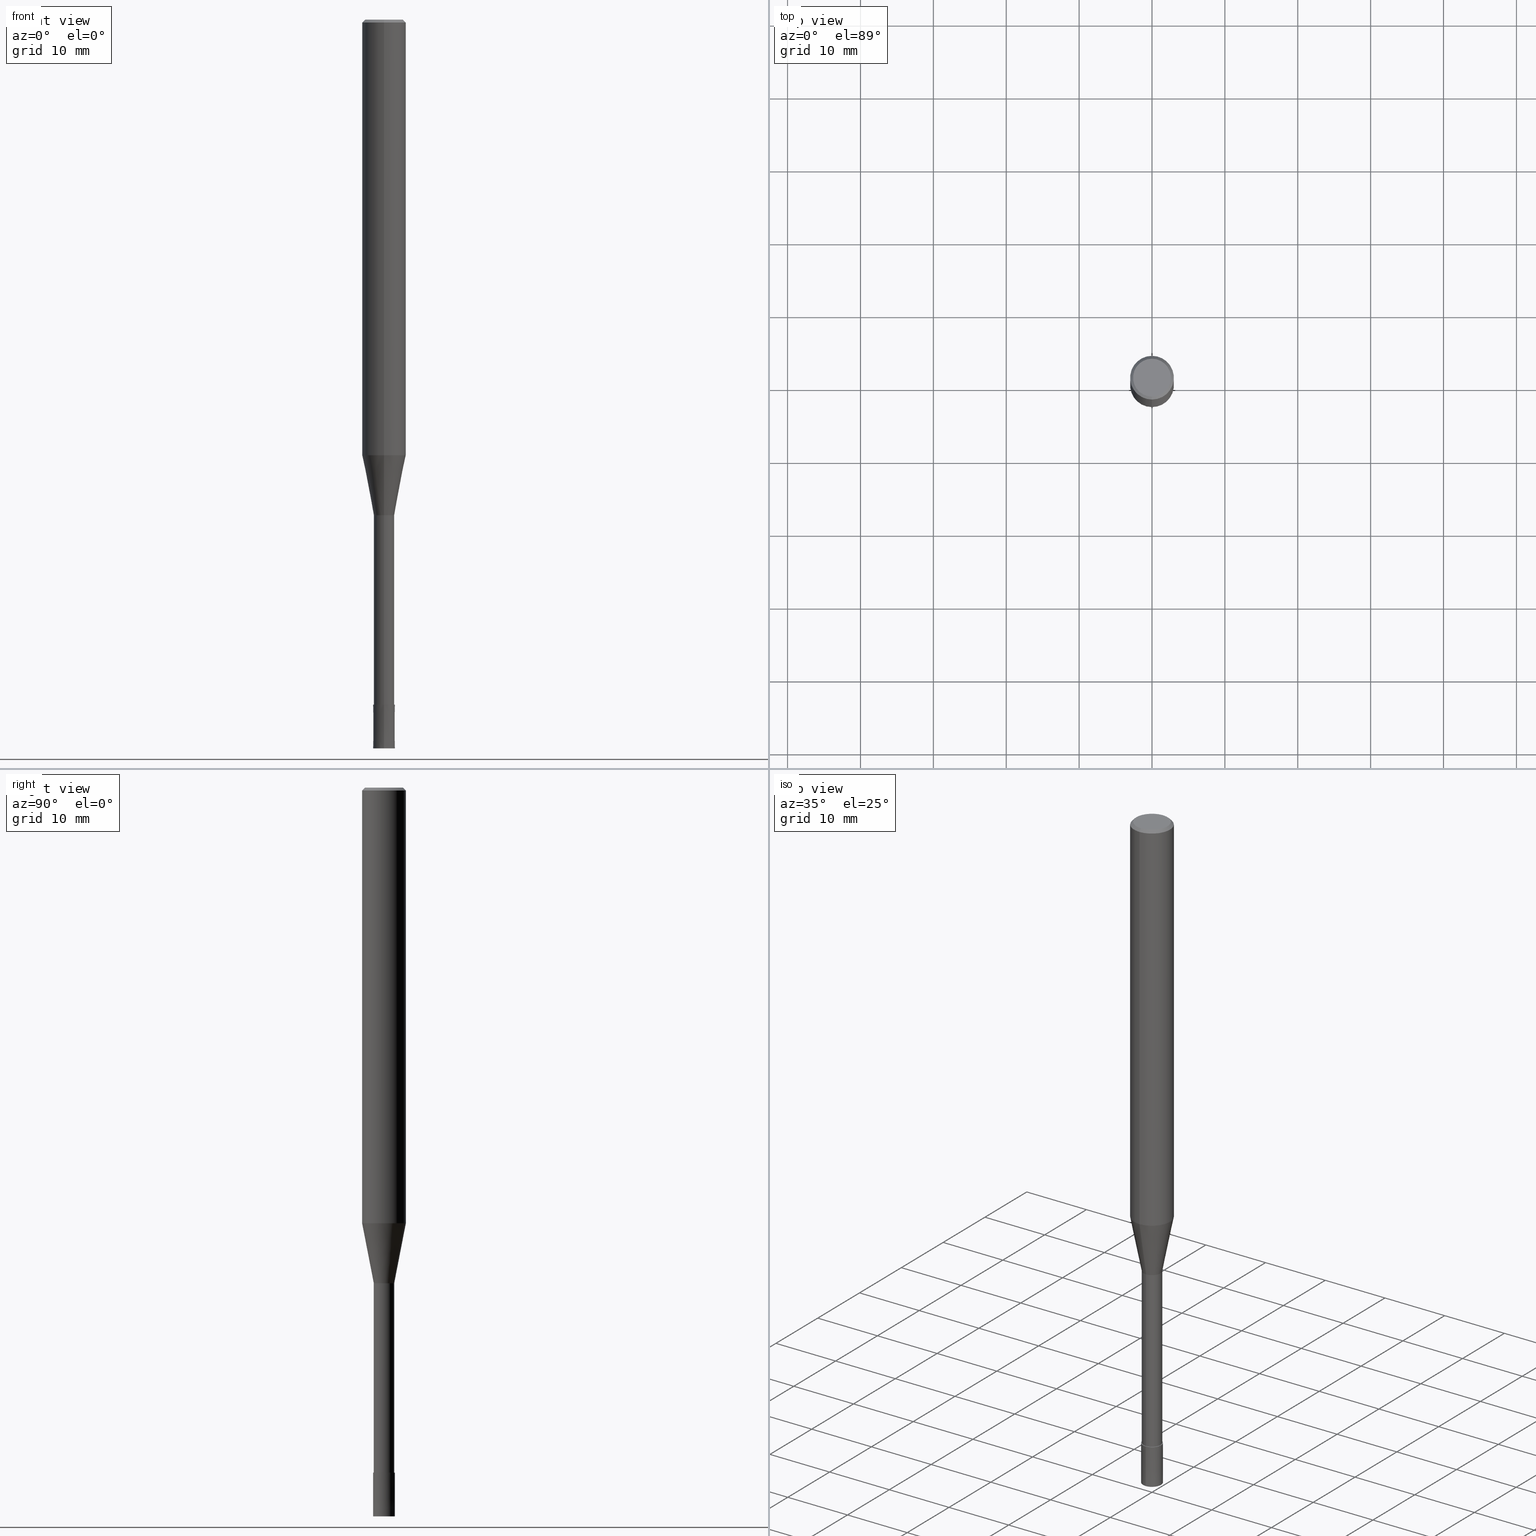
[diagram: canonical four-view strip — front | top / right | iso, engineering-drawing reading convention]
A machine part, canonical four-view strip (front | top / right | iso — engineering-drawing reading convention). The complete STEP part file that produces these views, byte-faithful:
ISO-10303-21;
HEADER;
FILE_DESCRIPTION(('no description'),'unknown implementation level');
FILE_NAME('CPRL2030-32-Huellk.stp','  ',('CIMSOURCE GmbH'),('CADClick - KiM GmbH - www.kimweb.de'),'unknown preprocess','ACIS','unknown authorization');
FILE_SCHEMA(('automotive_design'));
ENDSEC;
DATA;
#1=MECHANICAL_DESIGN_GEOMETRIC_PRESENTATION_REPRESENTATION(' ',(#14,#15,#16,#17,#18,#19,#20,#21,#22,#23,#24,#25,#26,#27,#28,#29,#30,#31,#32,#33,#34,#35,#36,#37,#38,#39,#40,#41,#42,#43,#44,#45,#46,#47,#48,#49,#50,#51,#52,#53,#54,#55,#56,#57,#58,#59,#60,#61,#62,#63,#64,#65,#66,#67,#68,#69,#70,#71,#72),#10);
#2=PRODUCT_DEFINITION_CONTEXT('',#73,'design');
#3=APPLICATION_PROTOCOL_DEFINITION('INTERNATIONAL STANDARD','automotive_design',1994,#73);
#4=PRODUCT_CATEGORY_RELATIONSHIP('NONE','NONE',#74,#75);
#5=SHAPE_DEFINITION_REPRESENTATION(#76,#77);
#6=PRODUCT_DEFINITION_CONTEXT('',#78,'design');
#7=APPLICATION_PROTOCOL_DEFINITION('INTERNATIONAL STANDARD','automotive_design',1994,#78);
#8=PRODUCT_CATEGORY_RELATIONSHIP('NONE','NONE',#79,#80);
#9=SHAPE_DEFINITION_REPRESENTATION(#81,#82);
#10= (GEOMETRIC_REPRESENTATION_CONTEXT(3)GLOBAL_UNCERTAINTY_ASSIGNED_CONTEXT((#85))GLOBAL_UNIT_ASSIGNED_CONTEXT((#87,#88,#89))REPRESENTATION_CONTEXT('NONE','WORKSPACE'));
#14=STYLED_ITEM('',(#91),#92);
#15=STYLED_ITEM('',(#93),#94);
#16=STYLED_ITEM('',(#95),#96);
#17=STYLED_ITEM('',(#97),#98);
#18=STYLED_ITEM('',(#99),#100);
#19=STYLED_ITEM('',(#101),#102);
#20=STYLED_ITEM('',(#103),#104);
#21=STYLED_ITEM('',(#105),#106);
#22=STYLED_ITEM('',(#107),#108);
#23=STYLED_ITEM('',(#109),#110);
#24=STYLED_ITEM('',(#111),#112);
#25=STYLED_ITEM('',(#113),#114);
#26=STYLED_ITEM('',(#115),#116);
#27=STYLED_ITEM('',(#117),#118);
#28=STYLED_ITEM('',(#119),#120);
#29=STYLED_ITEM('',(#121),#122);
#30=STYLED_ITEM('',(#123),#124);
#31=STYLED_ITEM('',(#125),#126);
#32=STYLED_ITEM('',(#127),#128);
#33=STYLED_ITEM('',(#129),#130);
#34=STYLED_ITEM('',(#131),#132);
#35=STYLED_ITEM('',(#133),#134);
#36=STYLED_ITEM('',(#135),#136);
#37=STYLED_ITEM('',(#137),#138);
#38=STYLED_ITEM('',(#139),#140);
#39=STYLED_ITEM('',(#141),#142);
#40=STYLED_ITEM('',(#143),#144);
#41=STYLED_ITEM('',(#145),#146);
#42=STYLED_ITEM('',(#147),#148);
#43=STYLED_ITEM('',(#149),#150);
#44=STYLED_ITEM('',(#151),#152);
#45=STYLED_ITEM('',(#153),#154);
#46=STYLED_ITEM('',(#155),#156);
#47=STYLED_ITEM('',(#157),#158);
#48=STYLED_ITEM('',(#159),#160);
#49=STYLED_ITEM('',(#161),#162);
#50=STYLED_ITEM('',(#163),#164);
#51=STYLED_ITEM('',(#165),#166);
#52=STYLED_ITEM('',(#167),#168);
#53=STYLED_ITEM('',(#169),#170);
#54=STYLED_ITEM('',(#171),#172);
#55=STYLED_ITEM('',(#173),#174);
#56=STYLED_ITEM('',(#175),#176);
#57=STYLED_ITEM('',(#177),#178);
#58=STYLED_ITEM('',(#179),#180);
#59=STYLED_ITEM('',(#181),#182);
#60=STYLED_ITEM('',(#183),#184);
#61=STYLED_ITEM('',(#185),#186);
#62=STYLED_ITEM('',(#187),#188);
#63=STYLED_ITEM('',(#189),#190);
#64=STYLED_ITEM('',(#191),#192);
#65=STYLED_ITEM('',(#193),#194);
#66=STYLED_ITEM('',(#195),#196);
#67=STYLED_ITEM('',(#197),#198);
#68=STYLED_ITEM('',(#199),#200);
#69=STYLED_ITEM('',(#201),#202);
#70=STYLED_ITEM('',(#203),#204);
#71=STYLED_ITEM('',(#205),#206);
#72=STYLED_ITEM('',(#207),#208);
#73=APPLICATION_CONTEXT(' ');
#74=PRODUCT_CATEGORY('part','NONE');
#75=PRODUCT_RELATED_PRODUCT_CATEGORY('detail',' ',(#209));
#76=PRODUCT_DEFINITION_SHAPE('NONE','NONE',#210);
#77=ADVANCED_BREP_SHAPE_REPRESENTATION('1',(#96,#211),#10);
#78=APPLICATION_CONTEXT(' ');
#79=PRODUCT_CATEGORY('part','NONE');
#80=PRODUCT_RELATED_PRODUCT_CATEGORY('detail',' ',(#212));
#81=PRODUCT_DEFINITION_SHAPE('NONE','NONE',#213);
#82=ADVANCED_BREP_SHAPE_REPRESENTATION('2',(#190,#214),#10);
#85=UNCERTAINTY_MEASURE_WITH_UNIT(LENGTH_MEASURE(1.0E-006),#87,'','');
#87= (CONVERSION_BASED_UNIT('MILLIMETRE',#217)LENGTH_UNIT()NAMED_UNIT(#220));
#88= (NAMED_UNIT(#222)PLANE_ANGLE_UNIT()SI_UNIT($,.RADIAN.));
#89= (NAMED_UNIT(#222)SOLID_ANGLE_UNIT()SI_UNIT($,.STERADIAN.));
#91=PRESENTATION_STYLE_ASSIGNMENT((#228));
#92=EDGE_CURVE('',#156,#160,#229,.T.);
#93=PRESENTATION_STYLE_ASSIGNMENT((#230));
#94=VERTEX_POINT('',#231);
#95=PRESENTATION_STYLE_ASSIGNMENT((#232));
#96=MANIFOLD_SOLID_BREP('1',#233);
#97=PRESENTATION_STYLE_ASSIGNMENT((#234));
#98=ADVANCED_FACE('',(#235),#236,.T.);
#99=PRESENTATION_STYLE_ASSIGNMENT((#237));
#100=EDGE_CURVE('',#116,#156,#238,.T.);
#101=PRESENTATION_STYLE_ASSIGNMENT((#239));
#102=VERTEX_POINT('',#240);
#103=PRESENTATION_STYLE_ASSIGNMENT((#241));
#104=VERTEX_POINT('',#242);
#105=PRESENTATION_STYLE_ASSIGNMENT((#243));
#106=ADVANCED_FACE('',(#244,#245),#246,.T.);
#107=PRESENTATION_STYLE_ASSIGNMENT((#247));
#108=EDGE_CURVE('',#184,#116,#248,.T.);
#109=PRESENTATION_STYLE_ASSIGNMENT((#249));
#110=EDGE_CURVE('',#104,#178,#250,.T.);
#111=PRESENTATION_STYLE_ASSIGNMENT((#251));
#112=ADVANCED_FACE('',(#252),#253,.T.);
#113=PRESENTATION_STYLE_ASSIGNMENT((#254));
#114=EDGE_CURVE('',#208,#130,#255,.T.);
#115=PRESENTATION_STYLE_ASSIGNMENT((#256));
#116=VERTEX_POINT('',#257);
#117=PRESENTATION_STYLE_ASSIGNMENT((#258));
#118=EDGE_CURVE('',#122,#156,#259,.T.);
#119=PRESENTATION_STYLE_ASSIGNMENT((#260));
#120=ADVANCED_FACE('',(#261),#262,.T.);
#121=PRESENTATION_STYLE_ASSIGNMENT((#263));
#122=VERTEX_POINT('',#264);
#123=PRESENTATION_STYLE_ASSIGNMENT((#265));
#124=EDGE_CURVE('',#130,#208,#266,.T.);
#125=PRESENTATION_STYLE_ASSIGNMENT((#267));
#126=VERTEX_POINT('',#268);
#127=PRESENTATION_STYLE_ASSIGNMENT((#269));
#128=EDGE_CURVE('',#104,#94,#270,.T.);
#129=PRESENTATION_STYLE_ASSIGNMENT((#271));
#130=VERTEX_POINT('',#272);
#131=PRESENTATION_STYLE_ASSIGNMENT((#273));
#132=EDGE_CURVE('',#170,#186,#274,.T.);
#133=PRESENTATION_STYLE_ASSIGNMENT((#275));
#134=EDGE_CURVE('',#102,#208,#276,.T.);
#135=PRESENTATION_STYLE_ASSIGNMENT((#277));
#136=EDGE_CURVE('',#206,#122,#278,.T.);
#137=PRESENTATION_STYLE_ASSIGNMENT((#279));
#138=EDGE_CURVE('',#102,#200,#280,.T.);
#139=PRESENTATION_STYLE_ASSIGNMENT((#281));
#140=EDGE_CURVE('',#122,#184,#282,.T.);
#141=PRESENTATION_STYLE_ASSIGNMENT((#283));
#142=EDGE_CURVE('',#94,#126,#284,.T.);
#143=PRESENTATION_STYLE_ASSIGNMENT((#285));
#144=ADVANCED_FACE('',(#286),#287,.T.);
#145=PRESENTATION_STYLE_ASSIGNMENT((#288));
#146=EDGE_CURVE('',#186,#130,#289,.T.);
#147=PRESENTATION_STYLE_ASSIGNMENT((#290));
#148=EDGE_CURVE('',#208,#170,#291,.T.);
#149=PRESENTATION_STYLE_ASSIGNMENT((#292));
#150=EDGE_CURVE('',#160,#206,#293,.T.);
#151=PRESENTATION_STYLE_ASSIGNMENT((#294));
#152=ADVANCED_FACE('',(#295),#296,.T.);
#153=PRESENTATION_STYLE_ASSIGNMENT((#297));
#154=ADVANCED_FACE('',(#298),#299,.T.);
#155=PRESENTATION_STYLE_ASSIGNMENT((#300));
#156=VERTEX_POINT('',#301);
#157=PRESENTATION_STYLE_ASSIGNMENT((#302));
#158=EDGE_CURVE('',#200,#102,#303,.T.);
#159=PRESENTATION_STYLE_ASSIGNMENT((#304));
#160=VERTEX_POINT('',#305);
#161=PRESENTATION_STYLE_ASSIGNMENT((#306));
#162=EDGE_CURVE('',#206,#160,#307,.T.);
#163=PRESENTATION_STYLE_ASSIGNMENT((#308));
#164=EDGE_CURVE('',#126,#94,#309,.T.);
#165=PRESENTATION_STYLE_ASSIGNMENT((#310));
#166=EDGE_CURVE('',#126,#178,#311,.T.);
#167=PRESENTATION_STYLE_ASSIGNMENT((#312));
#168=ADVANCED_FACE('',(#313),#314,.T.);
#169=PRESENTATION_STYLE_ASSIGNMENT((#315));
#170=VERTEX_POINT('',#316);
#171=PRESENTATION_STYLE_ASSIGNMENT((#317));
#172=ADVANCED_FACE('',(#318),#319,.T.);
#173=PRESENTATION_STYLE_ASSIGNMENT((#320));
#174=EDGE_CURVE('',#156,#122,#321,.T.);
#175=PRESENTATION_STYLE_ASSIGNMENT((#322));
#176=ADVANCED_FACE('',(#323),#324,.T.);
#177=PRESENTATION_STYLE_ASSIGNMENT((#325));
#178=VERTEX_POINT('',#326);
#179=PRESENTATION_STYLE_ASSIGNMENT((#327));
#180=EDGE_CURVE('',#178,#104,#328,.T.);
#181=PRESENTATION_STYLE_ASSIGNMENT((#329));
#182=ADVANCED_FACE('',(#330),#331,.T.);
#183=PRESENTATION_STYLE_ASSIGNMENT((#332));
#184=VERTEX_POINT('',#333);
#185=PRESENTATION_STYLE_ASSIGNMENT((#334));
#186=VERTEX_POINT('',#335);
#187=PRESENTATION_STYLE_ASSIGNMENT((#336));
#188=EDGE_CURVE('',#186,#170,#337,.T.);
#189=PRESENTATION_STYLE_ASSIGNMENT((#338));
#190=MANIFOLD_SOLID_BREP('2',#339);
#191=PRESENTATION_STYLE_ASSIGNMENT((#340));
#192=EDGE_CURVE('',#130,#200,#341,.T.);
#193=PRESENTATION_STYLE_ASSIGNMENT((#342));
#194=ADVANCED_FACE('',(#343),#344,.T.);
#195=PRESENTATION_STYLE_ASSIGNMENT((#345));
#196=ADVANCED_FACE('',(#346),#347,.T.);
#197=PRESENTATION_STYLE_ASSIGNMENT((#348));
#198=ADVANCED_FACE('',(#349),#350,.T.);
#199=PRESENTATION_STYLE_ASSIGNMENT((#351));
#200=VERTEX_POINT('',#352);
#201=PRESENTATION_STYLE_ASSIGNMENT((#353));
#202=EDGE_CURVE('',#116,#184,#354,.T.);
#203=PRESENTATION_STYLE_ASSIGNMENT((#355));
#204=ADVANCED_FACE('',(#356),#357,.T.);
#205=PRESENTATION_STYLE_ASSIGNMENT((#358));
#206=VERTEX_POINT('',#359);
#207=PRESENTATION_STYLE_ASSIGNMENT((#360));
#208=VERTEX_POINT('',#361);
#209=PRODUCT('1','1','PART-1-DESC',(#362));
#210=PRODUCT_DEFINITION('NONE','NONE',#363,#2);
#211=AXIS2_PLACEMENT_3D('',#364,#365,#366);
#212=PRODUCT('2','2','PART-2-DESC',(#367));
#213=PRODUCT_DEFINITION('NONE','NONE',#368,#6);
#214=AXIS2_PLACEMENT_3D('',#369,#370,#371);
#217=LENGTH_MEASURE_WITH_UNIT(LENGTH_MEASURE(1.0),#372);
#220=DIMENSIONAL_EXPONENTS(1.0,0.0,0.0,0.0,0.0,0.0,0.0);
#222=DIMENSIONAL_EXPONENTS(0.0,0.0,0.0,0.0,0.0,0.0,0.0);
#228=CURVE_STYLE('',#373,POSITIVE_LENGTH_MEASURE(1.0E-006),#374);
#229=LINE('',#375,#376);
#230=POINT_STYLE(' ',#377,POSITIVE_LENGTH_MEASURE(1.0E-006),#378);
#231=CARTESIAN_POINT('',(0.0,1.5,-100.0));
#232=SURFACE_STYLE_USAGE(.BOTH.,#379);
#233=CLOSED_SHELL('',(#176,#196,#168,#204,#106,#198,#98,#172,#182,#144,#120));
#234=SURFACE_STYLE_USAGE(.BOTH.,#380);
#235=FACE_OUTER_BOUND('',#381,.T.);
#236=CONICAL_SURFACE('',#382,2.8,0.78539816339745);
#237=CURVE_STYLE('',#383,POSITIVE_LENGTH_MEASURE(1.0E-006),#384);
#238=LINE('',#385,#386);
#239=POINT_STYLE(' ',#387,POSITIVE_LENGTH_MEASURE(1.0E-006),#388);
#240=CARTESIAN_POINT('',(0.0,2.6,0.0));
#241=POINT_STYLE(' ',#389,POSITIVE_LENGTH_MEASURE(1.0E-006),#390);
#242=CARTESIAN_POINT('',(0.0,1.4999,-94.0));
#243=SURFACE_STYLE_USAGE(.BOTH.,#391);
#244=FACE_OUTER_BOUND('',#392,.T.);
#245=FACE_BOUND('',#393,.T.);
#246=PLANE('',#394);
#247=CURVE_STYLE('',#395,POSITIVE_LENGTH_MEASURE(1.0E-006),#396);
#248=CIRCLE('',#397,1.39995);
#249=CURVE_STYLE('',#398,POSITIVE_LENGTH_MEASURE(1.0E-006),#399);
#250=CIRCLE('',#400,1.4999);
#251=SURFACE_STYLE_USAGE(.BOTH.,#401);
#252=FACE_OUTER_BOUND('',#402,.T.);
#253=PLANE('',#403);
#254=CURVE_STYLE('',#404,POSITIVE_LENGTH_MEASURE(1.0E-006),#405);
#255=CIRCLE('',#406,3.0);
#256=POINT_STYLE(' ',#407,POSITIVE_LENGTH_MEASURE(1.0E-006),#408);
#257=CARTESIAN_POINT('',(1.71438766503364E-016,-1.39995,-94.0));
#258=CURVE_STYLE('',#409,POSITIVE_LENGTH_MEASURE(1.0E-006),#410);
#259=CIRCLE('',#411,1.39995);
#260=SURFACE_STYLE_USAGE(.BOTH.,#412);
#261=FACE_OUTER_BOUND('',#413,.T.);
#262=PLANE('',#414);
#263=POINT_STYLE(' ',#415,POSITIVE_LENGTH_MEASURE(1.0E-006),#416);
#264=CARTESIAN_POINT('',(0.0,1.39995,-68.0));
#265=CURVE_STYLE('',#417,POSITIVE_LENGTH_MEASURE(1.0E-006),#418);
#266=CIRCLE('',#419,3.0);
#267=POINT_STYLE(' ',#420,POSITIVE_LENGTH_MEASURE(1.0E-006),#421);
#268=CARTESIAN_POINT('',(1.83690953073357E-016,-1.5,-100.0));
#269=CURVE_STYLE('',#422,POSITIVE_LENGTH_MEASURE(1.0E-006),#423);
#270=LINE('',#424,#425);
#271=POINT_STYLE(' ',#426,POSITIVE_LENGTH_MEASURE(1.0E-006),#427);
#272=CARTESIAN_POINT('',(3.67381906146713E-016,-3.0,-0.399999999999999));
#273=CURVE_STYLE('',#428,POSITIVE_LENGTH_MEASURE(1.0E-006),#429);
#274=CIRCLE('',#430,3.0);
#275=CURVE_STYLE('',#431,POSITIVE_LENGTH_MEASURE(1.0E-006),#432);
#276=LINE('',#433,#434);
#277=CURVE_STYLE('',#435,POSITIVE_LENGTH_MEASURE(1.0E-006),#436);
#278=LINE('',#437,#438);
#279=CURVE_STYLE('',#439,POSITIVE_LENGTH_MEASURE(1.0E-006),#440);
#280=CIRCLE('',#441,2.6);
#281=CURVE_STYLE('',#442,POSITIVE_LENGTH_MEASURE(1.0E-006),#443);
#282=LINE('',#444,#445);
#283=CURVE_STYLE('',#446,POSITIVE_LENGTH_MEASURE(1.0E-006),#447);
#284=CIRCLE('',#448,1.5);
#285=SURFACE_STYLE_USAGE(.BOTH.,#449);
#286=FACE_OUTER_BOUND('',#450,.T.);
#287=CYLINDRICAL_SURFACE('',#451,1.39995);
#288=CURVE_STYLE('',#452,POSITIVE_LENGTH_MEASURE(1.0E-006),#453);
#289=LINE('',#454,#455);
#290=CURVE_STYLE('',#456,POSITIVE_LENGTH_MEASURE(1.0E-006),#457);
#291=LINE('',#458,#459);
#292=CURVE_STYLE('',#460,POSITIVE_LENGTH_MEASURE(1.0E-006),#461);
#293=CIRCLE('',#462,2.99995);
#294=SURFACE_STYLE_USAGE(.BOTH.,#463);
#295=FACE_OUTER_BOUND('',#464,.T.);
#296=CONICAL_SURFACE('',#465,1.49995,1.66666666651216E-005);
#297=SURFACE_STYLE_USAGE(.BOTH.,#466);
#298=FACE_OUTER_BOUND('',#467,.T.);
#299=PLANE('',#468);
#300=POINT_STYLE(' ',#469,POSITIVE_LENGTH_MEASURE(1.0E-006),#470);
#301=CARTESIAN_POINT('',(1.71438766503364E-016,-1.39995,-68.0));
#302=CURVE_STYLE('',#471,POSITIVE_LENGTH_MEASURE(1.0E-006),#472);
#303=CIRCLE('',#473,2.6);
#304=POINT_STYLE(' ',#474,POSITIVE_LENGTH_MEASURE(1.0E-006),#475);
#305=CARTESIAN_POINT('',(3.67375783114944E-016,-2.99995,-59.769));
#306=CURVE_STYLE('',#476,POSITIVE_LENGTH_MEASURE(1.0E-006),#477);
#307=CIRCLE('',#478,2.99995);
#308=CURVE_STYLE('',#479,POSITIVE_LENGTH_MEASURE(1.0E-006),#480);
#309=CIRCLE('',#481,1.5);
#310=CURVE_STYLE('',#482,POSITIVE_LENGTH_MEASURE(1.0E-006),#483);
#311=LINE('',#484,#485);
#312=SURFACE_STYLE_USAGE(.BOTH.,#486);
#313=FACE_OUTER_BOUND('',#487,.T.);
#314=CYLINDRICAL_SURFACE('',#488,3.0);
#315=POINT_STYLE(' ',#489,POSITIVE_LENGTH_MEASURE(1.0E-006),#490);
#316=CARTESIAN_POINT('',(0.0,3.0,-59.769));
#317=SURFACE_STYLE_USAGE(.BOTH.,#491);
#318=FACE_OUTER_BOUND('',#492,.T.);
#319=CYLINDRICAL_SURFACE('',#493,3.0);
#320=CURVE_STYLE('',#494,POSITIVE_LENGTH_MEASURE(1.0E-006),#495);
#321=CIRCLE('',#496,1.39995);
#322=SURFACE_STYLE_USAGE(.BOTH.,#497);
#323=FACE_OUTER_BOUND('',#498,.T.);
#324=CYLINDRICAL_SURFACE('',#499,1.39995);
#325=POINT_STYLE(' ',#500,POSITIVE_LENGTH_MEASURE(1.0E-006),#501);
#326=CARTESIAN_POINT('',(1.83678707009818E-016,-1.4999,-94.0));
#327=CURVE_STYLE('',#502,POSITIVE_LENGTH_MEASURE(1.0E-006),#503);
#328=CIRCLE('',#504,1.4999);
#329=SURFACE_STYLE_USAGE(.BOTH.,#505);
#330=FACE_OUTER_BOUND('',#506,.T.);
#331=CONICAL_SURFACE('',#507,2.19995,0.191992735564386);
#332=POINT_STYLE(' ',#508,POSITIVE_LENGTH_MEASURE(1.0E-006),#509);
#333=CARTESIAN_POINT('',(0.0,1.39995,-94.0));
#334=POINT_STYLE(' ',#510,POSITIVE_LENGTH_MEASURE(1.0E-006),#511);
#335=CARTESIAN_POINT('',(3.67381906146713E-016,-3.0,-59.769));
#336=CURVE_STYLE('',#512,POSITIVE_LENGTH_MEASURE(1.0E-006),#513);
#337=CIRCLE('',#514,3.0);
#338=SURFACE_STYLE_USAGE(.BOTH.,#515);
#339=CLOSED_SHELL('',(#152,#112,#194,#154));
#340=CURVE_STYLE('',#516,POSITIVE_LENGTH_MEASURE(1.0E-006),#517);
#341=LINE('',#518,#519);
#342=SURFACE_STYLE_USAGE(.BOTH.,#520);
#343=FACE_OUTER_BOUND('',#521,.T.);
#344=CONICAL_SURFACE('',#522,1.49995,1.66666666651216E-005);
#345=SURFACE_STYLE_USAGE(.BOTH.,#523);
#346=FACE_OUTER_BOUND('',#524,.T.);
#347=CONICAL_SURFACE('',#525,2.19995,0.191992735564386);
#348=SURFACE_STYLE_USAGE(.BOTH.,#526);
#349=FACE_OUTER_BOUND('',#527,.T.);
#350=PLANE('',#528);
#351=POINT_STYLE(' ',#529,POSITIVE_LENGTH_MEASURE(1.0E-006),#530);
#352=CARTESIAN_POINT('',(3.18397651993818E-016,-2.6,0.0));
#353=CURVE_STYLE('',#531,POSITIVE_LENGTH_MEASURE(1.0E-006),#532);
#354=CIRCLE('',#533,1.39995);
#355=SURFACE_STYLE_USAGE(.BOTH.,#534);
#356=FACE_OUTER_BOUND('',#535,.T.);
#357=CONICAL_SURFACE('',#536,2.8,0.78539816339745);
#358=POINT_STYLE(' ',#537,POSITIVE_LENGTH_MEASURE(1.0E-006),#538);
#359=CARTESIAN_POINT('',(0.0,2.99995,-59.769));
#360=POINT_STYLE(' ',#539,POSITIVE_LENGTH_MEASURE(1.0E-006),#540);
#361=CARTESIAN_POINT('',(0.0,3.0,-0.399999999999999));
#362=PRODUCT_CONTEXT('',#73,'mechanical');
#363=PRODUCT_DEFINITION_FORMATION_WITH_SPECIFIED_SOURCE(' ','NONE',#209,.NOT_KNOWN.);
#364=CARTESIAN_POINT('',(0.0,0.0,0.0));
#365=DIRECTION('',(0.0,0.0,1.0));
#366=DIRECTION('',(1.0,0.0,0.0));
#367=PRODUCT_CONTEXT('',#78,'mechanical');
#368=PRODUCT_DEFINITION_FORMATION_WITH_SPECIFIED_SOURCE(' ','NONE',#212,.NOT_KNOWN.);
#369=CARTESIAN_POINT('',(0.0,0.0,0.0));
#370=DIRECTION('',(0.0,0.0,1.0));
#371=DIRECTION('',(1.0,0.0,0.0));
#372= (NAMED_UNIT(#220)LENGTH_UNIT()SI_UNIT(.MILLI.,.METRE.));
#373=DRAUGHTING_PRE_DEFINED_CURVE_FONT('continuous');
#374=COLOUR_RGB('',0.498039215803146,0.498039215803146,0.498039215803146);
#375=CARTESIAN_POINT('',(2.69407274809154E-016,-2.19995,-63.8845));
#376=VECTOR('',#542,1.0);
#377=PRE_DEFINED_MARKER('');
#378=COLOUR_RGB('',0.800000011920929,0.800000011920929,0.800000011920929);
#379=SURFACE_SIDE_STYLE('',(#543));
#380=SURFACE_SIDE_STYLE('',(#544));
#381=EDGE_LOOP('',(#545,#546,#547,#548));
#382=AXIS2_PLACEMENT_3D('',#549,#550,#551);
#383=DRAUGHTING_PRE_DEFINED_CURVE_FONT('continuous');
#384=COLOUR_RGB('',0.498039215803146,0.498039215803146,0.498039215803146);
#385=CARTESIAN_POINT('',(1.71438766503364E-016,-1.39995,-81.0));
#386=VECTOR('',#552,1.0);
#387=PRE_DEFINED_MARKER('');
#388=COLOUR_RGB('',0.498039215803146,0.498039215803146,0.498039215803146);
#389=PRE_DEFINED_MARKER('');
#390=COLOUR_RGB('',0.800000011920929,0.800000011920929,0.800000011920929);
#391=SURFACE_SIDE_STYLE('',(#553));
#392=EDGE_LOOP('',(#554,#555));
#393=EDGE_LOOP('',(#556,#557));
#394=AXIS2_PLACEMENT_3D('',#558,#559,#560);
#395=DRAUGHTING_PRE_DEFINED_CURVE_FONT('continuous');
#396=COLOUR_RGB('',0.498039215803146,0.498039215803146,0.498039215803146);
#397=AXIS2_PLACEMENT_3D('',#561,#562,#563);
#398=DRAUGHTING_PRE_DEFINED_CURVE_FONT('continuous');
#399=COLOUR_RGB('',0.800000011920929,0.800000011920929,0.800000011920929);
#400=AXIS2_PLACEMENT_3D('',#564,#565,#566);
#401=SURFACE_SIDE_STYLE('',(#567));
#402=EDGE_LOOP('',(#568,#569));
#403=AXIS2_PLACEMENT_3D('',#570,#571,#572);
#404=DRAUGHTING_PRE_DEFINED_CURVE_FONT('continuous');
#405=COLOUR_RGB('',0.498039215803146,0.498039215803146,0.498039215803146);
#406=AXIS2_PLACEMENT_3D('',#573,#574,#575);
#407=PRE_DEFINED_MARKER('');
#408=COLOUR_RGB('',0.498039215803146,0.498039215803146,0.498039215803146);
#409=DRAUGHTING_PRE_DEFINED_CURVE_FONT('continuous');
#410=COLOUR_RGB('',0.498039215803146,0.498039215803146,0.498039215803146);
#411=AXIS2_PLACEMENT_3D('',#576,#577,#578);
#412=SURFACE_SIDE_STYLE('',(#579));
#413=EDGE_LOOP('',(#580,#581));
#414=AXIS2_PLACEMENT_3D('',#582,#583,#584);
#415=PRE_DEFINED_MARKER('');
#416=COLOUR_RGB('',0.498039215803146,0.498039215803146,0.498039215803146);
#417=DRAUGHTING_PRE_DEFINED_CURVE_FONT('continuous');
#418=COLOUR_RGB('',0.498039215803146,0.498039215803146,0.498039215803146);
#419=AXIS2_PLACEMENT_3D('',#585,#586,#587);
#420=PRE_DEFINED_MARKER('');
#421=COLOUR_RGB('',0.800000011920929,0.800000011920929,0.800000011920929);
#422=DRAUGHTING_PRE_DEFINED_CURVE_FONT('continuous');
#423=COLOUR_RGB('',0.800000011920929,0.800000011920929,0.800000011920929);
#424=CARTESIAN_POINT('',(-1.83684830041587E-016,1.49995,-97.0));
#425=VECTOR('',#588,1.0);
#426=PRE_DEFINED_MARKER('');
#427=COLOUR_RGB('',0.498039215803146,0.498039215803146,0.498039215803146);
#428=DRAUGHTING_PRE_DEFINED_CURVE_FONT('continuous');
#429=COLOUR_RGB('',0.498039215803146,0.498039215803146,0.498039215803146);
#430=AXIS2_PLACEMENT_3D('',#589,#590,#591);
#431=DRAUGHTING_PRE_DEFINED_CURVE_FONT('continuous');
#432=COLOUR_RGB('',0.498039215803146,0.498039215803146,0.498039215803146);
#433=CARTESIAN_POINT('',(-3.42889779070266E-016,2.8,-0.199999999999996));
#434=VECTOR('',#592,1.0);
#435=DRAUGHTING_PRE_DEFINED_CURVE_FONT('continuous');
#436=COLOUR_RGB('',0.498039215803146,0.498039215803146,0.498039215803146);
#437=CARTESIAN_POINT('',(-2.69407274809154E-016,2.19995,-63.8845));
#438=VECTOR('',#593,1.0);
#439=DRAUGHTING_PRE_DEFINED_CURVE_FONT('continuous');
#440=COLOUR_RGB('',0.498039215803146,0.498039215803146,0.498039215803146);
#441=AXIS2_PLACEMENT_3D('',#594,#595,#596);
#442=DRAUGHTING_PRE_DEFINED_CURVE_FONT('continuous');
#443=COLOUR_RGB('',0.498039215803146,0.498039215803146,0.498039215803146);
#444=CARTESIAN_POINT('',(-1.71438766503364E-016,1.39995,-81.0));
#445=VECTOR('',#597,1.0);
#446=DRAUGHTING_PRE_DEFINED_CURVE_FONT('continuous');
#447=COLOUR_RGB('',0.800000011920929,0.800000011920929,0.800000011920929);
#448=AXIS2_PLACEMENT_3D('',#598,#599,#600);
#449=SURFACE_SIDE_STYLE('',(#601));
#450=EDGE_LOOP('',(#602,#603,#604,#605));
#451=AXIS2_PLACEMENT_3D('',#606,#607,#608);
#452=DRAUGHTING_PRE_DEFINED_CURVE_FONT('continuous');
#453=COLOUR_RGB('',0.498039215803146,0.498039215803146,0.498039215803146);
#454=CARTESIAN_POINT('',(3.67381906146713E-016,-3.0,-30.0845));
#455=VECTOR('',#609,1.0);
#456=DRAUGHTING_PRE_DEFINED_CURVE_FONT('continuous');
#457=COLOUR_RGB('',0.498039215803146,0.498039215803146,0.498039215803146);
#458=CARTESIAN_POINT('',(-3.67381906146713E-016,3.0,-30.0845));
#459=VECTOR('',#610,1.0);
#460=DRAUGHTING_PRE_DEFINED_CURVE_FONT('continuous');
#461=COLOUR_RGB('',0.498039215803146,0.498039215803146,0.498039215803146);
#462=AXIS2_PLACEMENT_3D('',#611,#612,#613);
#463=SURFACE_SIDE_STYLE('',(#614));
#464=EDGE_LOOP('',(#615,#616,#617,#618));
#465=AXIS2_PLACEMENT_3D('',#619,#620,#621);
#466=SURFACE_SIDE_STYLE('',(#622));
#467=EDGE_LOOP('',(#623,#624));
#468=AXIS2_PLACEMENT_3D('',#625,#626,#627);
#469=PRE_DEFINED_MARKER('');
#470=COLOUR_RGB('',0.498039215803146,0.498039215803146,0.498039215803146);
#471=DRAUGHTING_PRE_DEFINED_CURVE_FONT('continuous');
#472=COLOUR_RGB('',0.498039215803146,0.498039215803146,0.498039215803146);
#473=AXIS2_PLACEMENT_3D('',#628,#629,#630);
#474=PRE_DEFINED_MARKER('');
#475=COLOUR_RGB('',0.498039215803146,0.498039215803146,0.498039215803146);
#476=DRAUGHTING_PRE_DEFINED_CURVE_FONT('continuous');
#477=COLOUR_RGB('',0.498039215803146,0.498039215803146,0.498039215803146);
#478=AXIS2_PLACEMENT_3D('',#631,#632,#633);
#479=DRAUGHTING_PRE_DEFINED_CURVE_FONT('continuous');
#480=COLOUR_RGB('',0.800000011920929,0.800000011920929,0.800000011920929);
#481=AXIS2_PLACEMENT_3D('',#634,#635,#636);
#482=DRAUGHTING_PRE_DEFINED_CURVE_FONT('continuous');
#483=COLOUR_RGB('',0.800000011920929,0.800000011920929,0.800000011920929);
#484=CARTESIAN_POINT('',(1.83684830041587E-016,-1.49995,-97.0));
#485=VECTOR('',#637,1.0);
#486=SURFACE_SIDE_STYLE('',(#638));
#487=EDGE_LOOP('',(#639,#640,#641,#642));
#488=AXIS2_PLACEMENT_3D('',#643,#644,#645);
#489=PRE_DEFINED_MARKER('');
#490=COLOUR_RGB('',0.498039215803146,0.498039215803146,0.498039215803146);
#491=SURFACE_SIDE_STYLE('',(#646));
#492=EDGE_LOOP('',(#647,#648,#649,#650));
#493=AXIS2_PLACEMENT_3D('',#651,#652,#653);
#494=DRAUGHTING_PRE_DEFINED_CURVE_FONT('continuous');
#495=COLOUR_RGB('',0.498039215803146,0.498039215803146,0.498039215803146);
#496=AXIS2_PLACEMENT_3D('',#654,#655,#656);
#497=SURFACE_SIDE_STYLE('',(#657));
#498=EDGE_LOOP('',(#658,#659,#660,#661));
#499=AXIS2_PLACEMENT_3D('',#662,#663,#664);
#500=PRE_DEFINED_MARKER('');
#501=COLOUR_RGB('',0.800000011920929,0.800000011920929,0.800000011920929);
#502=DRAUGHTING_PRE_DEFINED_CURVE_FONT('continuous');
#503=COLOUR_RGB('',0.800000011920929,0.800000011920929,0.800000011920929);
#504=AXIS2_PLACEMENT_3D('',#665,#666,#667);
#505=SURFACE_SIDE_STYLE('',(#668));
#506=EDGE_LOOP('',(#669,#670,#671,#672));
#507=AXIS2_PLACEMENT_3D('',#673,#674,#675);
#508=PRE_DEFINED_MARKER('');
#509=COLOUR_RGB('',0.498039215803146,0.498039215803146,0.498039215803146);
#510=PRE_DEFINED_MARKER('');
#511=COLOUR_RGB('',0.498039215803146,0.498039215803146,0.498039215803146);
#512=DRAUGHTING_PRE_DEFINED_CURVE_FONT('continuous');
#513=COLOUR_RGB('',0.498039215803146,0.498039215803146,0.498039215803146);
#514=AXIS2_PLACEMENT_3D('',#676,#677,#678);
#515=SURFACE_SIDE_STYLE('',(#679));
#516=DRAUGHTING_PRE_DEFINED_CURVE_FONT('continuous');
#517=COLOUR_RGB('',0.498039215803146,0.498039215803146,0.498039215803146);
#518=CARTESIAN_POINT('',(3.42889779070266E-016,-2.8,-0.199999999999996));
#519=VECTOR('',#680,1.0);
#520=SURFACE_SIDE_STYLE('',(#681));
#521=EDGE_LOOP('',(#682,#683,#684,#685));
#522=AXIS2_PLACEMENT_3D('',#686,#687,#688);
#523=SURFACE_SIDE_STYLE('',(#689));
#524=EDGE_LOOP('',(#690,#691,#692,#693));
#525=AXIS2_PLACEMENT_3D('',#694,#695,#696);
#526=SURFACE_SIDE_STYLE('',(#697));
#527=EDGE_LOOP('',(#698,#699));
#528=AXIS2_PLACEMENT_3D('',#700,#701,#702);
#529=PRE_DEFINED_MARKER('');
#530=COLOUR_RGB('',0.498039215803146,0.498039215803146,0.498039215803146);
#531=DRAUGHTING_PRE_DEFINED_CURVE_FONT('continuous');
#532=COLOUR_RGB('',0.498039215803146,0.498039215803146,0.498039215803146);
#533=AXIS2_PLACEMENT_3D('',#703,#704,#705);
#534=SURFACE_SIDE_STYLE('',(#706));
#535=EDGE_LOOP('',(#707,#708,#709,#710));
#536=AXIS2_PLACEMENT_3D('',#711,#712,#713);
#537=PRE_DEFINED_MARKER('');
#538=COLOUR_RGB('',0.498039215803146,0.498039215803146,0.498039215803146);
#539=PRE_DEFINED_MARKER('');
#540=COLOUR_RGB('',0.498039215803146,0.498039215803146,0.498039215803146);
#542=DIRECTION('',(2.33673743245985E-017,-0.190815393466331,0.981625939763355));
#543=SURFACE_STYLE_FILL_AREA(#714);
#544=SURFACE_STYLE_FILL_AREA(#715);
#545=ORIENTED_EDGE('',*,*,#134,.T.);
#546=ORIENTED_EDGE('',*,*,#124,.F.);
#547=ORIENTED_EDGE('',*,*,#192,.T.);
#548=ORIENTED_EDGE('',*,*,#158,.T.);
#549=CARTESIAN_POINT('',(0.0,0.0,-0.199999999999996));
#550=DIRECTION('',(0.0,-0.0,-1.0));
#551=DIRECTION('',(0.0,1.0,0.0));
#552=DIRECTION('',(-0.0,-0.0,1.0));
#553=SURFACE_STYLE_FILL_AREA(#716);
#554=ORIENTED_EDGE('',*,*,#132,.T.);
#555=ORIENTED_EDGE('',*,*,#188,.T.);
#556=ORIENTED_EDGE('',*,*,#162,.F.);
#557=ORIENTED_EDGE('',*,*,#150,.F.);
#558=CARTESIAN_POINT('',(0.0,1.5,-59.769));
#559=DIRECTION('',(0.0,0.0,-1.0));
#560=DIRECTION('',(0.0,1.0,0.0));
#561=CARTESIAN_POINT('',(0.0,0.0,-94.0));
#562=DIRECTION('',(0.0,0.0,-1.0));
#563=DIRECTION('',(0.0,1.0,0.0));
#564=CARTESIAN_POINT('',(0.0,0.0,-94.0));
#565=DIRECTION('',(0.0,0.0,-1.0));
#566=DIRECTION('',(0.0,1.0,0.0));
#567=SURFACE_STYLE_FILL_AREA(#717);
#568=ORIENTED_EDGE('',*,*,#110,.F.);
#569=ORIENTED_EDGE('',*,*,#180,.F.);
#570=CARTESIAN_POINT('',(0.0,0.74995,-94.0));
#571=DIRECTION('',(-0.0,0.0,1.0));
#572=DIRECTION('',(0.0,-1.0,0.0));
#573=CARTESIAN_POINT('',(0.0,0.0,-0.399999999999999));
#574=DIRECTION('',(0.0,0.0,-1.0));
#575=DIRECTION('',(0.0,1.0,0.0));
#576=CARTESIAN_POINT('',(0.0,0.0,-68.0));
#577=DIRECTION('',(0.0,0.0,-1.0));
#578=DIRECTION('',(0.0,1.0,0.0));
#579=SURFACE_STYLE_FILL_AREA(#718);
#580=ORIENTED_EDGE('',*,*,#108,.T.);
#581=ORIENTED_EDGE('',*,*,#202,.T.);
#582=CARTESIAN_POINT('',(0.0,0.699975,-94.0));
#583=DIRECTION('',(0.0,0.0,-1.0));
#584=DIRECTION('',(0.0,1.0,0.0));
#585=CARTESIAN_POINT('',(0.0,0.0,-0.399999999999999));
#586=DIRECTION('',(0.0,0.0,-1.0));
#587=DIRECTION('',(0.0,1.0,0.0));
#588=DIRECTION('',(-2.04101058942026E-021,1.666666666435E-005,-0.999999999861111));
#589=CARTESIAN_POINT('',(0.0,0.0,-59.769));
#590=DIRECTION('',(0.0,0.0,-1.0));
#591=DIRECTION('',(0.0,1.0,0.0));
#592=DIRECTION('',(-8.65927457071937E-017,0.707106781186549,-0.707106781186546));
#593=DIRECTION('',(2.33673743245985E-017,-0.190815393466331,-0.981625939763355));
#594=CARTESIAN_POINT('',(0.0,0.0,0.0));
#595=DIRECTION('',(0.0,0.0,-1.0));
#596=DIRECTION('',(0.0,1.0,0.0));
#597=DIRECTION('',(0.0,0.0,-1.0));
#598=CARTESIAN_POINT('',(0.0,0.0,-100.0));
#599=DIRECTION('',(0.0,0.0,-1.0));
#600=DIRECTION('',(0.0,1.0,0.0));
#601=SURFACE_STYLE_FILL_AREA(#719);
#602=ORIENTED_EDGE('',*,*,#140,.T.);
#603=ORIENTED_EDGE('',*,*,#202,.F.);
#604=ORIENTED_EDGE('',*,*,#100,.T.);
#605=ORIENTED_EDGE('',*,*,#174,.T.);
#606=CARTESIAN_POINT('',(0.0,0.0,-81.0));
#607=DIRECTION('',(-0.0,-0.0,1.0));
#608=DIRECTION('',(0.0,1.0,0.0));
#609=DIRECTION('',(-0.0,-0.0,1.0));
#610=DIRECTION('',(0.0,0.0,-1.0));
#611=CARTESIAN_POINT('',(0.0,0.0,-59.769));
#612=DIRECTION('',(0.0,0.0,-1.0));
#613=DIRECTION('',(0.0,1.0,0.0));
#614=SURFACE_STYLE_FILL_AREA(#720);
#615=ORIENTED_EDGE('',*,*,#128,.F.);
#616=ORIENTED_EDGE('',*,*,#110,.T.);
#617=ORIENTED_EDGE('',*,*,#166,.F.);
#618=ORIENTED_EDGE('',*,*,#142,.F.);
#619=CARTESIAN_POINT('',(0.0,0.0,-97.0));
#620=DIRECTION('',(0.0,-0.0,-1.0));
#621=DIRECTION('',(0.0,1.0,0.0));
#622=SURFACE_STYLE_FILL_AREA(#721);
#623=ORIENTED_EDGE('',*,*,#142,.T.);
#624=ORIENTED_EDGE('',*,*,#164,.T.);
#625=CARTESIAN_POINT('',(0.0,0.7475,-100.0));
#626=DIRECTION('',(0.0,0.0,-1.0));
#627=DIRECTION('',(0.0,1.0,0.0));
#628=CARTESIAN_POINT('',(0.0,0.0,0.0));
#629=DIRECTION('',(0.0,0.0,-1.0));
#630=DIRECTION('',(0.0,1.0,0.0));
#631=CARTESIAN_POINT('',(0.0,0.0,-59.769));
#632=DIRECTION('',(0.0,0.0,-1.0));
#633=DIRECTION('',(0.0,1.0,0.0));
#634=CARTESIAN_POINT('',(0.0,0.0,-100.0));
#635=DIRECTION('',(0.0,0.0,-1.0));
#636=DIRECTION('',(0.0,1.0,0.0));
#637=DIRECTION('',(-2.04101058942026E-021,1.666666666435E-005,0.999999999861111));
#638=SURFACE_STYLE_FILL_AREA(#722);
#639=ORIENTED_EDGE('',*,*,#148,.F.);
#640=ORIENTED_EDGE('',*,*,#114,.T.);
#641=ORIENTED_EDGE('',*,*,#146,.F.);
#642=ORIENTED_EDGE('',*,*,#132,.F.);
#643=CARTESIAN_POINT('',(0.0,0.0,-30.0845));
#644=DIRECTION('',(-0.0,-0.0,1.0));
#645=DIRECTION('',(0.0,1.0,0.0));
#646=SURFACE_STYLE_FILL_AREA(#723);
#647=ORIENTED_EDGE('',*,*,#148,.T.);
#648=ORIENTED_EDGE('',*,*,#188,.F.);
#649=ORIENTED_EDGE('',*,*,#146,.T.);
#650=ORIENTED_EDGE('',*,*,#124,.T.);
#651=CARTESIAN_POINT('',(0.0,0.0,-30.0845));
#652=DIRECTION('',(-0.0,-0.0,1.0));
#653=DIRECTION('',(0.0,1.0,0.0));
#654=CARTESIAN_POINT('',(0.0,0.0,-68.0));
#655=DIRECTION('',(0.0,0.0,-1.0));
#656=DIRECTION('',(0.0,1.0,0.0));
#657=SURFACE_STYLE_FILL_AREA(#724);
#658=ORIENTED_EDGE('',*,*,#140,.F.);
#659=ORIENTED_EDGE('',*,*,#118,.T.);
#660=ORIENTED_EDGE('',*,*,#100,.F.);
#661=ORIENTED_EDGE('',*,*,#108,.F.);
#662=CARTESIAN_POINT('',(0.0,0.0,-81.0));
#663=DIRECTION('',(-0.0,-0.0,1.0));
#664=DIRECTION('',(0.0,1.0,0.0));
#665=CARTESIAN_POINT('',(0.0,0.0,-94.0));
#666=DIRECTION('',(0.0,0.0,-1.0));
#667=DIRECTION('',(0.0,1.0,0.0));
#668=SURFACE_STYLE_FILL_AREA(#725);
#669=ORIENTED_EDGE('',*,*,#136,.T.);
#670=ORIENTED_EDGE('',*,*,#174,.F.);
#671=ORIENTED_EDGE('',*,*,#92,.T.);
#672=ORIENTED_EDGE('',*,*,#150,.T.);
#673=CARTESIAN_POINT('',(0.0,0.0,-63.8845));
#674=DIRECTION('',(-0.0,-0.0,1.0));
#675=DIRECTION('',(0.0,1.0,0.0));
#676=CARTESIAN_POINT('',(0.0,0.0,-59.769));
#677=DIRECTION('',(0.0,0.0,-1.0));
#678=DIRECTION('',(0.0,1.0,0.0));
#679=SURFACE_STYLE_FILL_AREA(#726);
#680=DIRECTION('',(-8.65927457071937E-017,0.707106781186549,0.707106781186546));
#681=SURFACE_STYLE_FILL_AREA(#727);
#682=ORIENTED_EDGE('',*,*,#128,.T.);
#683=ORIENTED_EDGE('',*,*,#164,.F.);
#684=ORIENTED_EDGE('',*,*,#166,.T.);
#685=ORIENTED_EDGE('',*,*,#180,.T.);
#686=CARTESIAN_POINT('',(0.0,0.0,-97.0));
#687=DIRECTION('',(0.0,-0.0,-1.0));
#688=DIRECTION('',(0.0,1.0,0.0));
#689=SURFACE_STYLE_FILL_AREA(#728);
#690=ORIENTED_EDGE('',*,*,#136,.F.);
#691=ORIENTED_EDGE('',*,*,#162,.T.);
#692=ORIENTED_EDGE('',*,*,#92,.F.);
#693=ORIENTED_EDGE('',*,*,#118,.F.);
#694=CARTESIAN_POINT('',(0.0,0.0,-63.8845));
#695=DIRECTION('',(-0.0,-0.0,1.0));
#696=DIRECTION('',(0.0,1.0,0.0));
#697=SURFACE_STYLE_FILL_AREA(#729);
#698=ORIENTED_EDGE('',*,*,#138,.F.);
#699=ORIENTED_EDGE('',*,*,#158,.F.);
#700=CARTESIAN_POINT('',(0.0,1.3,0.0));
#701=DIRECTION('',(-0.0,0.0,1.0));
#702=DIRECTION('',(0.0,-1.0,0.0));
#703=CARTESIAN_POINT('',(0.0,0.0,-94.0));
#704=DIRECTION('',(0.0,0.0,-1.0));
#705=DIRECTION('',(0.0,1.0,0.0));
#706=SURFACE_STYLE_FILL_AREA(#730);
#707=ORIENTED_EDGE('',*,*,#134,.F.);
#708=ORIENTED_EDGE('',*,*,#138,.T.);
#709=ORIENTED_EDGE('',*,*,#192,.F.);
#710=ORIENTED_EDGE('',*,*,#114,.F.);
#711=CARTESIAN_POINT('',(0.0,0.0,-0.199999999999996));
#712=DIRECTION('',(0.0,-0.0,-1.0));
#713=DIRECTION('',(0.0,1.0,0.0));
#714=FILL_AREA_STYLE('',(#731));
#715=FILL_AREA_STYLE('',(#732));
#716=FILL_AREA_STYLE('',(#733));
#717=FILL_AREA_STYLE('',(#734));
#718=FILL_AREA_STYLE('',(#735));
#719=FILL_AREA_STYLE('',(#736));
#720=FILL_AREA_STYLE('',(#737));
#721=FILL_AREA_STYLE('',(#738));
#722=FILL_AREA_STYLE('',(#739));
#723=FILL_AREA_STYLE('',(#740));
#724=FILL_AREA_STYLE('',(#741));
#725=FILL_AREA_STYLE('',(#742));
#726=FILL_AREA_STYLE('',(#743));
#727=FILL_AREA_STYLE('',(#744));
#728=FILL_AREA_STYLE('',(#745));
#729=FILL_AREA_STYLE('',(#746));
#730=FILL_AREA_STYLE('',(#747));
#731=FILL_AREA_STYLE_COLOUR('',#748);
#732=FILL_AREA_STYLE_COLOUR('',#749);
#733=FILL_AREA_STYLE_COLOUR('',#750);
#734=FILL_AREA_STYLE_COLOUR('',#751);
#735=FILL_AREA_STYLE_COLOUR('',#752);
#736=FILL_AREA_STYLE_COLOUR('',#753);
#737=FILL_AREA_STYLE_COLOUR('',#754);
#738=FILL_AREA_STYLE_COLOUR('',#755);
#739=FILL_AREA_STYLE_COLOUR('',#756);
#740=FILL_AREA_STYLE_COLOUR('',#757);
#741=FILL_AREA_STYLE_COLOUR('',#758);
#742=FILL_AREA_STYLE_COLOUR('',#759);
#743=FILL_AREA_STYLE_COLOUR('',#760);
#744=FILL_AREA_STYLE_COLOUR('',#761);
#745=FILL_AREA_STYLE_COLOUR('',#762);
#746=FILL_AREA_STYLE_COLOUR('',#763);
#747=FILL_AREA_STYLE_COLOUR('',#764);
#748=COLOUR_RGB('',0.498039215803146,0.498039215803146,0.498039215803146);
#749=COLOUR_RGB('',0.498039215803146,0.498039215803146,0.498039215803146);
#750=COLOUR_RGB('',0.498039215803146,0.498039215803146,0.498039215803146);
#751=COLOUR_RGB('',0.800000011920929,0.800000011920929,0.800000011920929);
#752=COLOUR_RGB('',0.498039215803146,0.498039215803146,0.498039215803146);
#753=COLOUR_RGB('',0.498039215803146,0.498039215803146,0.498039215803146);
#754=COLOUR_RGB('',0.800000011920929,0.800000011920929,0.800000011920929);
#755=COLOUR_RGB('',0.800000011920929,0.800000011920929,0.800000011920929);
#756=COLOUR_RGB('',0.498039215803146,0.498039215803146,0.498039215803146);
#757=COLOUR_RGB('',0.498039215803146,0.498039215803146,0.498039215803146);
#758=COLOUR_RGB('',0.498039215803146,0.498039215803146,0.498039215803146);
#759=COLOUR_RGB('',0.498039215803146,0.498039215803146,0.498039215803146);
#760=COLOUR_RGB('',0.800000011920929,0.800000011920929,0.800000011920929);
#761=COLOUR_RGB('',0.800000011920929,0.800000011920929,0.800000011920929);
#762=COLOUR_RGB('',0.498039215803146,0.498039215803146,0.498039215803146);
#763=COLOUR_RGB('',0.498039215803146,0.498039215803146,0.498039215803146);
#764=COLOUR_RGB('',0.498039215803146,0.498039215803146,0.498039215803146);
#765=AXIS2_PLACEMENT_3D('PCS',#766,#767,#768);
#766=CARTESIAN_POINT('',(0.0,0.0,0.0));
#767=DIRECTION('',(0.0,0.0,1.0));
#768=DIRECTION('',(1.0,0.0,0.0));
#769=AXIS2_PLACEMENT_3D('CIP',#770,#771,#772);
#770=CARTESIAN_POINT('',(0.0,0.0,-100.0));
#771=DIRECTION('',(0.0,0.0,1.0));
#772=DIRECTION('',(1.0,0.0,0.0));
#773=AXIS2_PLACEMENT_3D('CRP',#774,#775,#776);
#774=CARTESIAN_POINT('',(-1.5,0.0,-100.0));
#775=DIRECTION('',(0.0,0.0,1.0));
#776=DIRECTION('',(1.0,0.0,0.0));
#777=AXIS2_PLACEMENT_3D('MCS',#778,#779,#780);
#778=CARTESIAN_POINT('',(0.0,0.0,-59.769));
#779=DIRECTION('',(0.0,0.0,1.0));
#780=DIRECTION('',(1.0,0.0,0.0));
#781=CONSTRUCTIVE_GEOMETRY_REPRESENTATION_RELATIONSHIP('coordinate systems',$,#77,#782);
#782=CONSTRUCTIVE_GEOMETRY_REPRESENTATION('coordinate systems',(#765,#769,#773,#777),#10);
ENDSEC;
END-ISO-10303-21;
